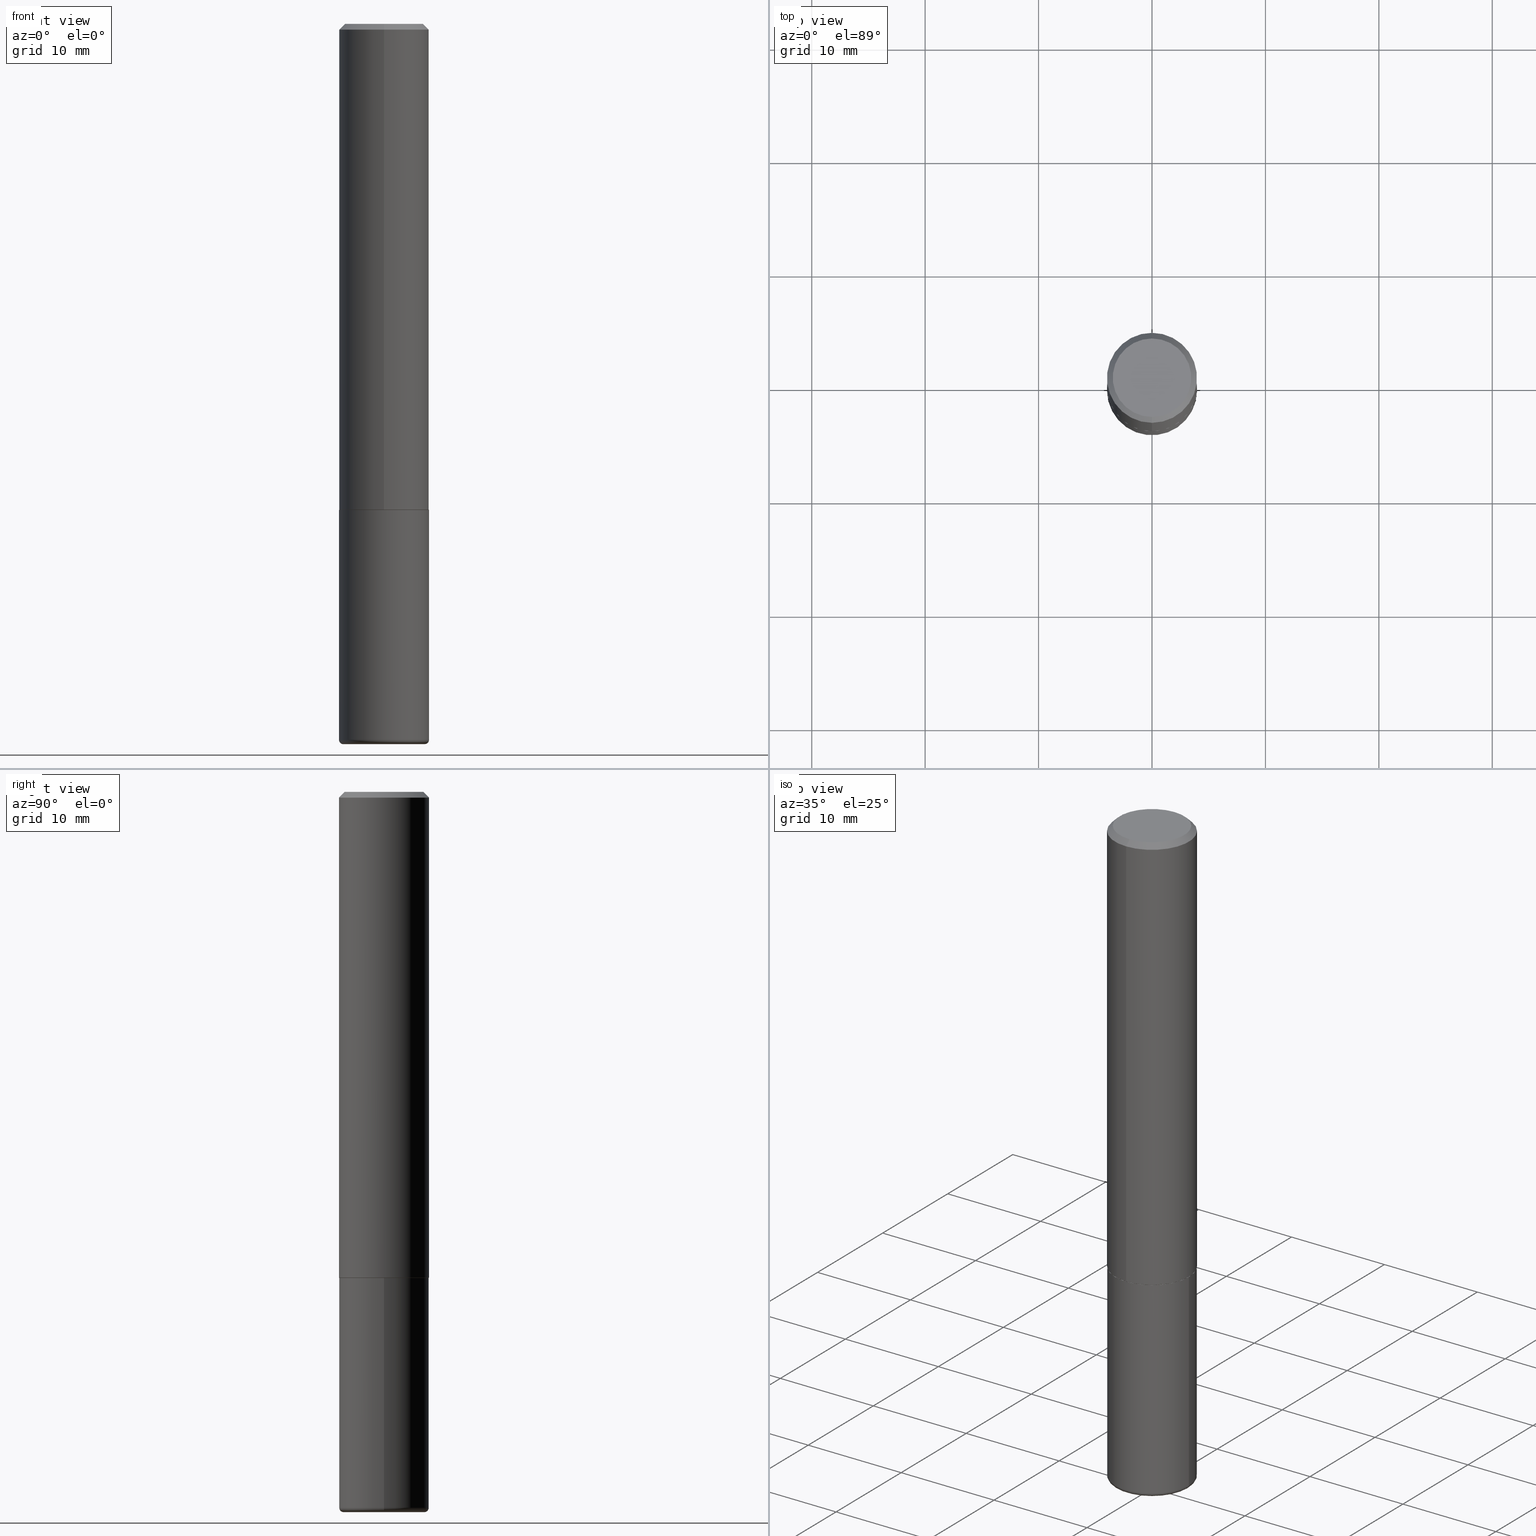
[diagram: canonical four-view strip — front | top / right | iso, engineering-drawing reading convention]
A machine part, canonical four-view strip (front | top / right | iso — engineering-drawing reading convention). The complete STEP part file that produces these views, byte-faithful:
ISO-10303-21;
HEADER;
FILE_DESCRIPTION (( 'STEP AP203' ),
    '1' );
FILE_NAME ('36724.STEP',
    '2024-03-01T17:37:02',
    ( '' ),
    ( '' ),
    'SwSTEP 2.0',
    'SolidWorks 2023',
    '' );
FILE_SCHEMA (( 'CONFIG_CONTROL_DESIGN' ));
ENDSEC;

DATA;
#1 = CIRCLE ( 'NONE', #169, 0.1552499999999999991 ) ;
#2 = CARTESIAN_POINT ( 'NONE',  ( 6.076989983370064174E-29, -8.676331127025216680E-15, -2.484999999999999876 ) ) ;
#3 = ADVANCED_FACE ( 'NONE', ( #73 ), #58, .T. ) ;
#4 = DIRECTION ( 'NONE',  ( -2.445468806185136877E-29, 3.491481338843145188E-15, 1.000000000000000000 ) ) ;
#5 = DIRECTION ( 'NONE',  ( -6.982962677686265922E-15, -1.000000000000000000, 3.519288880726909138E-15 ) ) ;
#6 = DIRECTION ( 'NONE',  ( -1.000000000000000000, 6.982962677686265922E-15, -4.876176775795935793E-29 ) ) ;
#7 = AXIS2_PLACEMENT_3D ( 'NONE', #339, #233, #298 ) ;
#9 = VERTEX_POINT ( 'NONE', #297 ) ;
#8 = DIRECTION ( 'NONE',  ( 2.445775803462607950E-29, -3.491041701268606382E-15, -1.000000000000000000 ) ) ;
#10 = ADVANCED_FACE ( 'NONE', ( #90 ), #74, .T. ) ;
#11 = CARTESIAN_POINT ( 'NONE',  ( 2.507022930474334728E-45, -3.578464380885487858E-31, -1.025042003819408096E-16 ) ) ;
#12 = DIRECTION ( 'NONE',  ( 1.000000000000000000, -6.982962677686269077E-15, 0.000000000000000000 ) ) ;
#13 = CC_DESIGN_APPROVAL ( #101, ( #26 ) ) ;
#14 = DATE_AND_TIME ( #347, #311 ) ;
#15 = ORIENTED_EDGE ( 'NONE', *, *, #342, .T. ) ;
#16 = EDGE_CURVE ( 'NONE', #353, #219, #260, .T. ) ;
#17 = APPROVAL_ROLE ( '' ) ;
#18 = CARTESIAN_POINT ( 'NONE',  ( 1.106670310946398043E-15, 0.1552499999999941427, -1.687000000000001165 ) ) ;
#19 = ORIENTED_EDGE ( 'NONE', *, *, #402, .F. ) ;
#20 = AXIS2_PLACEMENT_3D ( 'NONE', #194, #153, #325 ) ;
#21 = PERSON_AND_ORGANIZATION ( #55, #372 ) ;
#22 = AXIS2_PLACEMENT_3D ( 'NONE', #111, #238, #148 ) ;
#23 = CARTESIAN_POINT ( 'NONE',  ( -1.091087918388439730E-15, -0.1562500000000061617, -1.685999999999999721 ) ) ;
#24 = COORDINATED_UNIVERSAL_TIME_OFFSET ( 5, 0, .BEHIND. ) ;
#25 = APPLICATION_PROTOCOL_DEFINITION ( 'international standard', 'config_control_design', 1994, #343 ) ;
#26 = PRODUCT_DEFINITION_FORMATION_WITH_SPECIFIED_SOURCE ( 'ANY', '', #240, .NOT_KNOWN. ) ;
#27 = ORIENTED_EDGE ( 'NONE', *, *, #106, .F. ) ;
#28 = UNCERTAINTY_MEASURE_WITH_UNIT (LENGTH_MEASURE( 1.000000000000000082E-05 ), #255, 'distance_accuracy_value', 'NONE');
#29 = MANIFOLD_SOLID_BREP ( 'Body-Move/Copy2[2]', #327 ) ;
#30 = LINE ( 'NONE', #274, #224 ) ;
#31 = CYLINDRICAL_SURFACE ( 'NONE', #213, 0.1562500000000001388 ) ;
#32 = EDGE_CURVE ( 'NONE', #313, #323, #39, .T. ) ;
#33 = DIRECTION ( 'NONE',  ( -4.851104656540958753E-15, -0.7071067811865492381, -0.7071067811865457964 ) ) ;
#34 = ORIENTED_EDGE ( 'NONE', *, *, #263, .F. ) ;
#35 = AXIS2_PLACEMENT_3D ( 'NONE', #43, #8, #345 ) ;
#36 = DIRECTION ( 'NONE',  ( -6.982962677686265922E-15, -1.000000000000000000, 3.491041701268606382E-15 ) ) ;
#37 = ADVANCED_FACE ( 'NONE', ( #265 ), #241, .F. ) ;
#38 = DIRECTION ( 'NONE',  ( -2.445775803462607950E-29, 3.491041701268606382E-15, 1.000000000000000000 ) ) ;
#39 = LINE ( 'NONE', #239, #181 ) ;
#40 = ADVANCED_FACE ( 'NONE', ( #391 ), #346, .T. ) ;
#41 = VECTOR ( 'NONE', #60, 39.37007874015748143 ) ;
#42 = FACE_OUTER_BOUND ( 'NONE', #52, .T. ) ;
#43 = CARTESIAN_POINT ( 'NONE',  ( 4.891551606925223922E-31, -6.982083402537224056E-17, -0.02000000000000003511 ) ) ;
#44 = DIRECTION ( 'NONE',  ( 1.000000000000000000, -6.982962677686209124E-15, 0.000000000000000000 ) ) ;
#46 = ORIENTED_EDGE ( 'NONE', *, *, #237, .F. ) ;
#45 = CARTESIAN_POINT ( 'NONE',  ( 6.113672015462842613E-29, -8.728703347107866520E-15, -2.500000000000000444 ) ) ;
#47 = DIRECTION ( 'NONE',  ( -2.445775803462607950E-29, 3.491041701268606382E-15, 1.000000000000000000 ) ) ;
#48 = CARTESIAN_POINT ( 'NONE',  ( -0.1562500000000000000, -6.173007048201645860E-15, -1.687000000000000277 ) ) ;
#49 = AXIS2_PLACEMENT_3D ( 'NONE', #272, #206, #303 ) ;
#50 = CIRCLE ( 'NONE', #357, 0.1412500000000000144 ) ;
#51 = LENGTH_MEASURE_WITH_UNIT ( LENGTH_MEASURE( 0.02539999999999999897 ), #127 );
#52 = EDGE_LOOP ( 'NONE', ( #413, #94, #360, #202 ) ) ;
#53 = PERSON_AND_ORGANIZATION_ROLE ( 'classification_officer' ) ;
#54 = ORIENTED_EDGE ( 'NONE', *, *, #377, .F. ) ;
#55 = PERSON ( 'UNSPECIFIED', 'UNSPECIFIED', 'UNSPECIFIED', ('UNSPECIFIED'), ('UNSPECIFIED'), ('UNSPECIFIED') ) ;
#56 = EDGE_LOOP ( 'NONE', ( #119, #124, #54, #84 ) ) ;
#57 = VERTEX_POINT ( 'NONE', #114 ) ;
#58 = TOROIDAL_SURFACE ( 'NONE', #262, 0.1412500000000000144, 0.01500000000000039496 ) ;
#59 = PERSON_AND_ORGANIZATION ( #55, #372 ) ;
#60 = DIRECTION ( 'NONE',  ( 4.937700262164542520E-15, 0.7071067811865443531, -0.7071067811865506814 ) ) ;
#61 = ORIENTED_EDGE ( 'NONE', *, *, #315, .T. ) ;
#62 = PERSON_AND_ORGANIZATION ( #55, #372 ) ;
#63 = EDGE_LOOP ( 'NONE', ( #150, #27, #161, #278 ) ) ;
#64 = AXIS2_PLACEMENT_3D ( 'NONE', #112, #47, #180 ) ;
#65 = CARTESIAN_POINT ( 'NONE',  ( 1.021258291611617059E-15, 0.1362500000000001210, -5.781586321797888956E-16 ) ) ;
#66 = EDGE_LOOP ( 'NONE', ( #350, #88 ) ) ;
#67 = EDGE_CURVE ( 'NONE', #404, #313, #155, .T. ) ;
#68 = SHAPE_DEFINITION_REPRESENTATION ( #203, #131 ) ;
#69 = DIRECTION ( 'NONE',  ( 7.105427357601001859E-15, 1.000000000000000000, -3.491481338843145583E-15 ) ) ;
#70 = SECURITY_CLASSIFICATION ( '', '', #279 ) ;
#71 = CARTESIAN_POINT ( 'NONE',  ( 4.125505876034326327E-29, -5.890129018628388122E-15, -1.687000000000000277 ) ) ;
#73 = FACE_OUTER_BOUND ( 'NONE', #366, .T. ) ;
#72 = CARTESIAN_POINT ( 'NONE',  ( 4.891551606925223922E-31, -6.982083402537224056E-17, -0.02000000000000003511 ) ) ;
#74 = CYLINDRICAL_SURFACE ( 'NONE', #234, 0.1562500000000000000 ) ;
#75 = CARTESIAN_POINT ( 'NONE',  ( 0.000000000000000000, 0.000000000000000000, 0.000000000000000000 ) ) ;
#76 = DIRECTION ( 'NONE',  ( -2.445468806185136597E-29, 3.491481338843145583E-15, 1.000000000000000000 ) ) ;
#77 = FACE_OUTER_BOUND ( 'NONE', #126, .T. ) ;
#78 = LINE ( 'NONE', #341, #232 ) ;
#79 = DIRECTION ( 'NONE',  ( -6.982962677686265133E-15, -1.000000000000000000, 3.496765431890256920E-15 ) ) ;
#80 = DIRECTION ( 'NONE',  ( -6.982962677686265922E-15, -1.000000000000000000, 3.496765431890250609E-15 ) ) ;
#81 = CARTESIAN_POINT ( 'NONE',  ( 4.125505876034326327E-29, -5.890129018628388122E-15, -1.687000000000000277 ) ) ;
#82 = DIRECTION ( 'NONE',  ( -2.445468806185136597E-29, 3.491481338843145583E-15, 1.000000000000000000 ) ) ;
#84 = ORIENTED_EDGE ( 'NONE', *, *, #283, .F. ) ;
#83 = CARTESIAN_POINT ( 'NONE',  ( 0.1562500000000002220, -9.767419045413696643E-15, -2.484999999999999876 ) ) ;
#85 = ORIENTED_EDGE ( 'NONE', *, *, #402, .T. ) ;
#86 = APPROVAL_PERSON_ORGANIZATION ( #87, #338, #17 ) ;
#87 = PERSON_AND_ORGANIZATION ( #55, #372 ) ;
#88 = ORIENTED_EDGE ( 'NONE', *, *, #92, .T. ) ;
#89 = DIRECTION ( 'NONE',  ( -2.445775803462607950E-29, 3.491041701268606382E-15, 1.000000000000000000 ) ) ;
#90 = FACE_OUTER_BOUND ( 'NONE', #301, .T. ) ;
#91 = ADVANCED_FACE ( 'NONE', ( #77 ), #144, .T. ) ;
#92 = EDGE_CURVE ( 'NONE', #57, #275, #108, .T. ) ;
#93 = LINE ( 'NONE', #352, #41 ) ;
#94 = ORIENTED_EDGE ( 'NONE', *, *, #302, .T. ) ;
#95 = DATE_AND_TIME ( #226, #362 ) ;
#96 = CARTESIAN_POINT ( 'NONE',  ( 1.110223024625157329E-15, 0.1562500000000001388, -5.454752658232202403E-16 ) ) ;
#97 = EDGE_LOOP ( 'NONE', ( #128, #401, #184, #285 ) ) ;
#98 = PERSON_AND_ORGANIZATION ( #55, #372 ) ;
#99 = ORIENTED_EDGE ( 'NONE', *, *, #16, .T. ) ;
#100 = FACE_OUTER_BOUND ( 'NONE', #66, .T. ) ;
#101 = APPROVAL ( #349, 'UNSPECIFIED' ) ;
#102 = ORIENTED_EDGE ( 'NONE', *, *, #183, .F. ) ;
#103 = CIRCLE ( 'NONE', #370, 0.1562500000000000000 ) ;
#104 = PLANE ( 'NONE',  #204 ) ;
#105 = DIRECTION ( 'NONE',  ( -1.000000000000000000, 6.982962677686265922E-15, -4.876176775795935793E-29 ) ) ;
#106 = EDGE_CURVE ( 'NONE', #275, #57, #199, .T. ) ;
#107 = DIRECTION ( 'NONE',  ( 1.000000000000000000, -6.982962677686266711E-15, 4.876176775795936353E-29 ) ) ;
#108 = CIRCLE ( 'NONE', #296, 0.1362500000000001210 ) ;
#109 = EDGE_LOOP ( 'NONE', ( #319, #188 ) ) ;
#110 = CARTESIAN_POINT ( 'NONE',  ( 0.000000000000000000, 0.000000000000000000, 0.000000000000000000 ) ) ;
#111 = CARTESIAN_POINT ( 'NONE',  ( 4.126023780441421476E-29, -5.889387350040140911E-15, -1.687000000000000499 ) ) ;
#112 = CARTESIAN_POINT ( 'NONE',  ( 4.891551606925223922E-31, -6.982083402537224056E-17, -0.02000000000000003511 ) ) ;
#113 = EDGE_CURVE ( 'NONE', #158, #220, #355, .T. ) ;
#114 = CARTESIAN_POINT ( 'NONE',  ( -1.003347832174086672E-15, -0.1362500000000001210, 3.731502314159072271E-16 ) ) ;
#115 = AXIS2_PLACEMENT_3D ( 'NONE', #221, #129, #286 ) ;
#116 = FACE_OUTER_BOUND ( 'NONE', #375, .T. ) ;
#117 = APPROVAL ( #187, 'UNSPECIFIED' ) ;
#118 = VERTEX_POINT ( 'NONE', #333 ) ;
#119 = ORIENTED_EDGE ( 'NONE', *, *, #263, .T. ) ;
#120 = AXIS2_PLACEMENT_3D ( 'NONE', #175, #290, #408 ) ;
#121 =( GEOMETRIC_REPRESENTATION_CONTEXT ( 3 ) GLOBAL_UNCERTAINTY_ASSIGNED_CONTEXT ( ( #28 ) ) GLOBAL_UNIT_ASSIGNED_CONTEXT ( ( #255, #123, #249 ) ) REPRESENTATION_CONTEXT ( 'NONE', 'WORKASPACE' ) );
#122 = ADVANCED_FACE ( 'NONE', ( #209 ), #171, .T. ) ;
#123 =( NAMED_UNIT ( * ) PLANE_ANGLE_UNIT ( ) SI_UNIT ( $, .RADIAN. ) );
#124 = ORIENTED_EDGE ( 'NONE', *, *, #259, .T. ) ;
#125 = APPROVAL_ROLE ( '' ) ;
#126 = EDGE_LOOP ( 'NONE', ( #247, #99, #348, #326 ) ) ;
#127 =( LENGTH_UNIT ( ) NAMED_UNIT ( * ) SI_UNIT ( $, .METRE. ) );
#128 = ORIENTED_EDGE ( 'NONE', *, *, #377, .T. ) ;
#129 = DIRECTION ( 'NONE',  ( 0.000000000000000000, 0.000000000000000000, 1.000000000000000000 ) ) ;
#130 = DIRECTION ( 'NONE',  ( -6.982962677686265922E-15, -1.000000000000000000, 3.519288880726909138E-15 ) ) ;
#131 = ADVANCED_BREP_SHAPE_REPRESENTATION ( '36724', ( #316, #29, #115 ), #121 ) ;
#132 = EDGE_CURVE ( 'NONE', #353, #313, #387, .T. ) ;
#133 = DIRECTION ( 'NONE',  ( -2.445468806185136597E-29, 3.491481338843145583E-15, 1.000000000000000000 ) ) ;
#134 = ADVANCED_FACE ( 'NONE', ( #42 ), #379, .T. ) ;
#135 = AXIS2_PLACEMENT_3D ( 'NONE', #72, #215, #214 ) ;
#136 = CIRCLE ( 'NONE', #147, 0.1552499999999999991 ) ;
#137 = ORIENTED_EDGE ( 'NONE', *, *, #193, .F. ) ;
#138 = FACE_OUTER_BOUND ( 'NONE', #109, .T. ) ;
#139 = DIRECTION ( 'NONE',  ( 1.000000000000000000, -6.982962677686269077E-15, 0.000000000000000000 ) ) ;
#140 = DIRECTION ( 'NONE',  ( -2.445775803462607950E-29, 3.491041701268606382E-15, 1.000000000000000000 ) ) ;
#141 = CARTESIAN_POINT ( 'NONE',  ( 6.076989983370064174E-29, -8.676331127025216680E-15, -2.484999999999999876 ) ) ;
#142 = CARTESIAN_POINT ( 'NONE',  ( 4.126023780441421476E-29, -5.889387350040140911E-15, -1.687000000000000499 ) ) ;
#143 = CARTESIAN_POINT ( 'NONE',  ( 0.1412500000000000144, -9.662674605248401695E-15, -2.484999999999999876 ) ) ;
#144 = CYLINDRICAL_SURFACE ( 'NONE', #309, 0.1562500000000000000 ) ;
#145 = DIRECTION ( 'NONE',  ( -2.445775803462607950E-29, 3.491041701268606382E-15, 1.000000000000000000 ) ) ;
#146 = AXIS2_PLACEMENT_3D ( 'NONE', #197, #418, #130 ) ;
#147 = AXIS2_PLACEMENT_3D ( 'NONE', #142, #38, #5 ) ;
#148 = DIRECTION ( 'NONE',  ( -6.982962677686265922E-15, -1.000000000000000000, 3.519288880726909138E-15 ) ) ;
#149 = ORIENTED_EDGE ( 'NONE', *, *, #271, .T. ) ;
#150 = ORIENTED_EDGE ( 'NONE', *, *, #190, .F. ) ;
#151 = EDGE_CURVE ( 'NONE', #323, #219, #304, .T. ) ;
#152 = PERSON_AND_ORGANIZATION ( #55, #372 ) ;
#153 = DIRECTION ( 'NONE',  ( 2.445775803462607950E-29, -3.491041701268606382E-15, -1.000000000000000000 ) ) ;
#154 = VERTEX_POINT ( 'NONE', #18 ) ;
#155 = CIRCLE ( 'NONE', #268, 0.01500000000000040364 ) ;
#156 = APPROVAL_PERSON_ORGANIZATION ( #98, #117, #354 ) ;
#157 = COORDINATED_UNIVERSAL_TIME_OFFSET ( 5, 0, .BEHIND. ) ;
#158 = VERTEX_POINT ( 'NONE', #250 ) ;
#159 = ADVANCED_FACE ( 'NONE', ( #165 ), #174, .T. ) ;
#160 = PLANE ( 'NONE',  #20 ) ;
#161 = ORIENTED_EDGE ( 'NONE', *, *, #186, .T. ) ;
#162 = PERSON_AND_ORGANIZATION_ROLE ( 'design_owner' ) ;
#163 = AXIS2_PLACEMENT_3D ( 'NONE', #179, #388, #79 ) ;
#164 = LOCAL_TIME ( 12, 37, 2.000000000000000000, #157 ) ;
#165 = FACE_OUTER_BOUND ( 'NONE', #56, .T. ) ;
#166 = FACE_OUTER_BOUND ( 'NONE', #97, .T. ) ;
#167 = ADVANCED_FACE ( 'NONE', ( #100 ), #160, .F. ) ;
#168 = CARTESIAN_POINT ( 'NONE',  ( -0.1412500000000000144, -7.672689512764074473E-15, -2.484999999999999876 ) ) ;
#169 = AXIS2_PLACEMENT_3D ( 'NONE', #207, #89, #378 ) ;
#170 = CONICAL_SURFACE ( 'NONE', #22, 0.1552499999999999991, 0.7853981633974141952 ) ;
#171 = CYLINDRICAL_SURFACE ( 'NONE', #7, 0.1562500000000001388 ) ;
#172 = CARTESIAN_POINT ( 'NONE',  ( -0.1562500000000000000, 1.110223024625156540E-15, -7.685836078523291160E-30 ) ) ;
#173 = CC_DESIGN_DATE_AND_TIME_ASSIGNMENT ( #410, #416, ( #264 ) ) ;
#174 = CONICAL_SURFACE ( 'NONE', #146, 0.1552499999999999991, 0.7853981633974141952 ) ;
#175 = CARTESIAN_POINT ( 'NONE',  ( 4.125505876034326327E-29, -5.890129018628388122E-15, -1.687000000000000277 ) ) ;
#176 = DIMENSIONAL_EXPONENTS ( 1.000000000000000000, 0.000000000000000000, 0.000000000000000000, 0.000000000000000000, 0.000000000000000000, 0.000000000000000000, 0.000000000000000000 ) ;
#177 = DIRECTION ( 'NONE',  ( -2.445775803462607670E-29, 3.491041701268606382E-15, 1.000000000000000000 ) ) ;
#178 = PLANE ( 'NONE',  #340 ) ;
#179 = CARTESIAN_POINT ( 'NONE',  ( 4.891551606925223922E-31, -6.982083402537224056E-17, -0.02000000000000003511 ) ) ;
#180 = DIRECTION ( 'NONE',  ( -6.982962677686265133E-15, -1.000000000000000000, 3.496765431890256920E-15 ) ) ;
#181 = VECTOR ( 'NONE', #270, 39.37007874015748143 ) ;
#182 = CIRCLE ( 'NONE', #248, 0.1562500000000002776 ) ;
#183 = EDGE_CURVE ( 'NONE', #223, #158, #380, .T. ) ;
#184 = ORIENTED_EDGE ( 'NONE', *, *, #393, .F. ) ;
#185 = ORIENTED_EDGE ( 'NONE', *, *, #16, .F. ) ;
#186 = EDGE_CURVE ( 'NONE', #275, #158, #93, .T. ) ;
#187 = APPROVAL_STATUS ( 'not_yet_approved' ) ;
#188 = ORIENTED_EDGE ( 'NONE', *, *, #193, .T. ) ;
#189 = AXIS2_PLACEMENT_3D ( 'NONE', #141, #235, #216 ) ;
#190 = EDGE_CURVE ( 'NONE', #57, #220, #227, .T. ) ;
#191 = DATE_AND_TIME ( #374, #205 ) ;
#192 = ORIENTED_EDGE ( 'NONE', *, *, #113, .F. ) ;
#193 = EDGE_CURVE ( 'NONE', #219, #323, #103, .T. ) ;
#194 = CARTESIAN_POINT ( 'NONE',  ( 9.514286648347545493E-16, 0.1362500000000001210, -5.269065319888184785E-16 ) ) ;
#195 = ORIENTED_EDGE ( 'NONE', *, *, #342, .F. ) ;
#196 = FACE_OUTER_BOUND ( 'NONE', #228, .T. ) ;
#197 = CARTESIAN_POINT ( 'NONE',  ( 4.126023780441421476E-29, -5.889387350040140911E-15, -1.687000000000000499 ) ) ;
#198 = ORIENTED_EDGE ( 'NONE', *, *, #259, .F. ) ;
#199 = CIRCLE ( 'NONE', #331, 0.1362500000000001210 ) ;
#200 = LOCAL_TIME ( 12, 37, 2.000000000000000000, #407 ) ;
#201 = LINE ( 'NONE', #383, #395 ) ;
#202 = ORIENTED_EDGE ( 'NONE', *, *, #132, .F. ) ;
#203 = PRODUCT_DEFINITION_SHAPE ( 'NONE', 'NONE',  #264 ) ;
#204 = AXIS2_PLACEMENT_3D ( 'NONE', #295, #328, #105 ) ;
#205 = LOCAL_TIME ( 12, 37, 2.000000000000000000, #317 ) ;
#206 = DIRECTION ( 'NONE',  ( -2.445775803462607950E-29, 3.491041701268606382E-15, 1.000000000000000000 ) ) ;
#207 = CARTESIAN_POINT ( 'NONE',  ( 4.126023780441421476E-29, -5.889387350040140911E-15, -1.687000000000000499 ) ) ;
#208 = DIRECTION ( 'NONE',  ( -4.937700262164378437E-15, -0.7071067811865208164, 0.7071067811865739960 ) ) ;
#209 = FACE_OUTER_BOUND ( 'NONE', #376, .T. ) ;
#210 = CARTESIAN_POINT ( 'NONE',  ( 6.076989983370064174E-29, -8.676331127025216680E-15, -2.484999999999999876 ) ) ;
#211 = DIRECTION ( 'NONE',  ( -2.445775803462607950E-29, 3.491041701268606382E-15, 1.000000000000000000 ) ) ;
#212 = DIRECTION ( 'NONE',  ( -2.445468806185136597E-29, 3.491481338843145583E-15, 1.000000000000000000 ) ) ;
#213 = AXIS2_PLACEMENT_3D ( 'NONE', #364, #336, #273 ) ;
#214 = DIRECTION ( 'NONE',  ( 6.982962677686265133E-15, 1.000000000000000000, -3.496765431890256920E-15 ) ) ;
#215 = DIRECTION ( 'NONE',  ( 2.445775803462607950E-29, -3.491041701268606382E-15, -1.000000000000000000 ) ) ;
#216 = DIRECTION ( 'NONE',  ( 1.000000000000000000, -6.982962677686269077E-15, 0.000000000000000000 ) ) ;
#217 = COORDINATED_UNIVERSAL_TIME_OFFSET ( 5, 0, .BEHIND. ) ;
#218 = CARTESIAN_POINT ( 'NONE',  ( -1.071952812151801215E-15, -0.1562500000000000833, -0.01999999999999948694 ) ) ;
#219 = VERTEX_POINT ( 'NONE', #48 ) ;
#220 = VERTEX_POINT ( 'NONE', #218 ) ;
#221 = CARTESIAN_POINT ( 'NONE',  ( 0.000000000000000000, 0.000000000000000000, 0.000000000000000000 ) ) ;
#222 = DIRECTION ( 'NONE',  ( -2.445775803462607670E-29, 3.491041701268606382E-15, 1.000000000000000000 ) ) ;
#223 = VERTEX_POINT ( 'NONE', #277 ) ;
#224 = VECTOR ( 'NONE', #266, 39.37007874015748854 ) ;
#225 = AXIS2_PLACEMENT_3D ( 'NONE', #168, #69, #329 ) ;
#226 = CALENDAR_DATE ( 2024, 1, 3 ) ;
#227 = LINE ( 'NONE', #359, #280 ) ;
#228 = EDGE_LOOP ( 'NONE', ( #256, #409 ) ) ;
#229 = DIRECTION ( 'NONE',  ( -2.445468806185136597E-29, 3.491481338843145583E-15, 1.000000000000000000 ) ) ;
#230 = ADVANCED_FACE ( 'NONE', ( #138 ), #178, .F. ) ;
#231 = VECTOR ( 'NONE', #222, 39.37007874015748143 ) ;
#232 = VECTOR ( 'NONE', #177, 39.37007874015748143 ) ;
#233 = DIRECTION ( 'NONE',  ( -2.445775803462607950E-29, 3.491041701268606382E-15, 1.000000000000000000 ) ) ;
#234 = AXIS2_PLACEMENT_3D ( 'NONE', #75, #397, #288 ) ;
#235 = DIRECTION ( 'NONE',  ( -2.445468806185136597E-29, 3.491481338843145583E-15, 1.000000000000000000 ) ) ;
#236 = CARTESIAN_POINT ( 'NONE',  ( 2.507022930474334728E-45, -3.578464380885487858E-31, -1.025042003819408096E-16 ) ) ;
#237 = EDGE_CURVE ( 'NONE', #313, #353, #384, .T. ) ;
#238 = DIRECTION ( 'NONE',  ( -2.445775803462607950E-29, 3.491041701268606382E-15, 1.000000000000000000 ) ) ;
#239 = CARTESIAN_POINT ( 'NONE',  ( 0.1562500000000000000, -1.091087918388479174E-15, 7.619026212181150377E-30 ) ) ;
#240 = PRODUCT ( '36724', '36724', '', ( #351 ) ) ;
#241 = PLANE ( 'NONE',  #49 ) ;
#242 = CARTESIAN_POINT ( 'NONE',  ( 4.123578004637957798E-29, -5.885896308338871459E-15, -1.686000000000000165 ) ) ;
#244 = VERTEX_POINT ( 'NONE', #23 ) ;
#243 = DIRECTION ( 'NONE',  ( 1.000000000000000000, -6.982962677686269077E-15, 0.000000000000000000 ) ) ;
#245 = PERSON_AND_ORGANIZATION_ROLE ( 'design_supplier' ) ;
#246 = AXIS2_PLACEMENT_3D ( 'NONE', #412, #229, #253 ) ;
#247 = ORIENTED_EDGE ( 'NONE', *, *, #237, .T. ) ;
#248 = AXIS2_PLACEMENT_3D ( 'NONE', #394, #145, #399 ) ;
#249 =( NAMED_UNIT ( * ) SI_UNIT ( $, .STERADIAN. ) SOLID_ANGLE_UNIT ( ) );
#250 = CARTESIAN_POINT ( 'NONE',  ( 1.091087918388479568E-15, 0.1562499999999999445, -0.02000000000000057981 ) ) ;
#251 = ORIENTED_EDGE ( 'NONE', *, *, #190, .T. ) ;
#252 = ADVANCED_FACE ( 'NONE', ( #196 ), #104, .T. ) ;
#253 = DIRECTION ( 'NONE',  ( 1.000000000000000000, -6.982962677686262766E-15, 4.883557194083111219E-29 ) ) ;
#254 = ORIENTED_EDGE ( 'NONE', *, *, #92, .F. ) ;
#255 =( CONVERSION_BASED_UNIT ( 'INCH', #51 ) LENGTH_UNIT ( ) NAMED_UNIT ( #176 ) );
#256 = ORIENTED_EDGE ( 'NONE', *, *, #315, .F. ) ;
#257 = AXIS2_PLACEMENT_3D ( 'NONE', #242, #400, #80 ) ;
#258 = PERSON_AND_ORGANIZATION_ROLE ( 'creator' ) ;
#259 = EDGE_CURVE ( 'NONE', #154, #223, #30, .T. ) ;
#260 = LINE ( 'NONE', #172, #318 ) ;
#261 = PRODUCT_RELATED_PRODUCT_CATEGORY ( 'detail', '', ( #240 ) ) ;
#262 = AXIS2_PLACEMENT_3D ( 'NONE', #210, #133, #267 ) ;
#263 = EDGE_CURVE ( 'NONE', #9, #154, #1, .T. ) ;
#264 = PRODUCT_DEFINITION ( 'UNKNOWN', '', #26, #367 ) ;
#265 = FACE_OUTER_BOUND ( 'NONE', #356, .T. ) ;
#266 = DIRECTION ( 'NONE',  ( 5.024295867787889629E-15, 0.7071067811865257013, 0.7071067811865691111 ) ) ;
#267 = DIRECTION ( 'NONE',  ( 1.000000000000000000, -6.982962677686262766E-15, 4.883557194083111219E-29 ) ) ;
#268 = AXIS2_PLACEMENT_3D ( 'NONE', #143, #308, #44 ) ;
#269 = APPROVAL_PERSON_ORGANIZATION ( #152, #101, #125 ) ;
#270 = DIRECTION ( 'NONE',  ( -2.445468806185136877E-29, 3.491481338843145188E-15, 1.000000000000000000 ) ) ;
#271 = EDGE_CURVE ( 'NONE', #118, #353, #396, .T. ) ;
#272 = CARTESIAN_POINT ( 'NONE',  ( 4.126023780441420915E-29, -5.889387350040140911E-15, -1.687000000000000277 ) ) ;
#273 = DIRECTION ( 'NONE',  ( -6.982962677686265922E-15, -1.000000000000000000, 3.491041701268606382E-15 ) ) ;
#274 = CARTESIAN_POINT ( 'NONE',  ( 1.103117597267596553E-15, 0.1552499999999941427, -1.687000000000001165 ) ) ;
#275 = VERTEX_POINT ( 'NONE', #65 ) ;
#276 = CC_DESIGN_PERSON_AND_ORGANIZATION_ASSIGNMENT ( #59, #162, ( #240 ) ) ;
#277 = CARTESIAN_POINT ( 'NONE',  ( 1.110223024625178629E-15, 0.1562499999999943934, -1.686000000000000831 ) ) ;
#278 = ORIENTED_EDGE ( 'NONE', *, *, #113, .T. ) ;
#279 = SECURITY_CLASSIFICATION_LEVEL ( 'unclassified' ) ;
#280 = VECTOR ( 'NONE', #33, 39.37007874015748143 ) ;
#281 = EDGE_LOOP ( 'NONE', ( #198, #85, #371, #195 ) ) ;
#282 = CONICAL_SURFACE ( 'NONE', #35, 0.1562500000000000000, 0.7853981633974472798 ) ;
#283 = EDGE_CURVE ( 'NONE', #9, #244, #201, .T. ) ;
#284 = CALENDAR_DATE ( 2024, 1, 3 ) ;
#285 = ORIENTED_EDGE ( 'NONE', *, *, #414, .F. ) ;
#286 = DIRECTION ( 'NONE',  ( 1.000000000000000000, 0.000000000000000000, 0.000000000000000000 ) ) ;
#287 = ORIENTED_EDGE ( 'NONE', *, *, #67, .F. ) ;
#288 = DIRECTION ( 'NONE',  ( 1.000000000000000000, -6.982962677686266711E-15, 4.876176775795936353E-29 ) ) ;
#289 = APPROVAL_DATE_TIME ( #191, #117 ) ;
#290 = DIRECTION ( 'NONE',  ( -2.445468806185136597E-29, 3.491481338843145583E-15, 1.000000000000000000 ) ) ;
#291 = ADVANCED_FACE ( 'NONE', ( #166 ), #31, .T. ) ;
#292 = CLOSED_SHELL ( 'NONE', ( #91, #3, #230, #10, #134, #252 ) ) ;
#293 = CIRCLE ( 'NONE', #257, 0.1562500000000002776 ) ;
#294 = CC_DESIGN_PERSON_AND_ORGANIZATION_ASSIGNMENT ( #382, #53, ( #70 ) ) ;
#295 = CARTESIAN_POINT ( 'NONE',  ( -6.390333228981024769E-30, -1.839896173176012694E-14, -2.500000000000000000 ) ) ;
#296 = AXIS2_PLACEMENT_3D ( 'NONE', #11, #140, #369 ) ;
#297 = CARTESIAN_POINT ( 'NONE',  ( -1.084104955710751547E-15, -0.1552500000000058833, -1.687000000000000055 ) ) ;
#298 = DIRECTION ( 'NONE',  ( -6.982962677686265922E-15, -1.000000000000000000, 3.491041701268606382E-15 ) ) ;
#299 = CALENDAR_DATE ( 2024, 1, 3 ) ;
#300 = DIRECTION ( 'NONE',  ( -2.445468806185136597E-29, 3.491481338843145583E-15, 1.000000000000000000 ) ) ;
#301 = EDGE_LOOP ( 'NONE', ( #185, #415, #381, #137 ) ) ;
#302 = EDGE_CURVE ( 'NONE', #118, #404, #332, .T. ) ;
#303 = DIRECTION ( 'NONE',  ( -6.982962677686265922E-15, -1.000000000000000000, 3.491041701268606382E-15 ) ) ;
#304 = CIRCLE ( 'NONE', #120, 0.1562500000000000000 ) ;
#305 = AXIS2_PLACEMENT_3D ( 'NONE', #45, #212, #12 ) ;
#306 = CARTESIAN_POINT ( 'NONE',  ( 0.1562500000000000000, -6.981216937016868084E-15, -1.687000000000000277 ) ) ;
#307 = CC_DESIGN_PERSON_AND_ORGANIZATION_ASSIGNMENT ( #62, #245, ( #26 ) ) ;
#308 = DIRECTION ( 'NONE',  ( -6.982962677686266711E-15, -1.000000000000000000, 3.491481338843145583E-15 ) ) ;
#309 = AXIS2_PLACEMENT_3D ( 'NONE', #110, #300, #107 ) ;
#310 = CARTESIAN_POINT ( 'NONE',  ( 0.1412500000000000144, -9.715046825331051535E-15, -2.500000000000000444 ) ) ;
#311 = LOCAL_TIME ( 12, 37, 2.000000000000000000, #217 ) ;
#312 = PERSON_AND_ORGANIZATION ( #55, #372 ) ;
#313 = VERTEX_POINT ( 'NONE', #83 ) ;
#314 = APPROVAL_STATUS ( 'not_yet_approved' ) ;
#315 = EDGE_CURVE ( 'NONE', #404, #118, #50, .T. ) ;
#316 = MANIFOLD_SOLID_BREP ( 'Body-Move/Copy2[1]', #292 ) ;
#317 = COORDINATED_UNIVERSAL_TIME_OFFSET ( 5, 0, .BEHIND. ) ;
#318 = VECTOR ( 'NONE', #4, 39.37007874015748143 ) ;
#319 = ORIENTED_EDGE ( 'NONE', *, *, #151, .T. ) ;
#320 = CC_DESIGN_APPROVAL ( #117, ( #264 ) ) ;
#321 = PERSON_AND_ORGANIZATION_ROLE ( 'creator' ) ;
#322 = APPLICATION_PROTOCOL_DEFINITION ( 'international standard', 'config_control_design', 1994, #365 ) ;
#323 = VERTEX_POINT ( 'NONE', #306 ) ;
#324 = CC_DESIGN_PERSON_AND_ORGANIZATION_ASSIGNMENT ( #21, #321, ( #264 ) ) ;
#325 = DIRECTION ( 'NONE',  ( 6.982962677686265922E-15, 1.000000000000000000, -3.491041701268606382E-15 ) ) ;
#326 = ORIENTED_EDGE ( 'NONE', *, *, #32, .F. ) ;
#327 = CLOSED_SHELL ( 'NONE', ( #159, #291, #344, #40, #122, #411, #37, #167 ) ) ;
#328 = DIRECTION ( 'NONE',  ( 2.438088387897960049E-29, -3.491481338843145188E-15, -1.000000000000000000 ) ) ;
#329 = DIRECTION ( 'NONE',  ( -1.000000000000000000, 7.105427357600993970E-15, 0.000000000000000000 ) ) ;
#330 = ORIENTED_EDGE ( 'NONE', *, *, #393, .T. ) ;
#331 = AXIS2_PLACEMENT_3D ( 'NONE', #236, #211, #36 ) ;
#332 = CIRCLE ( 'NONE', #305, 0.1412500000000000144 ) ;
#333 = CARTESIAN_POINT ( 'NONE',  ( -0.1412500000000000144, -7.645584917623393016E-15, -2.500000000000000444 ) ) ;
#334 = CARTESIAN_POINT ( 'NONE',  ( -0.1562500000000002220, -7.566108102400058562E-15, -2.484999999999999876 ) ) ;
#335 = DIRECTION ( 'NONE',  ( 2.438088387897960049E-29, -3.491481338843145188E-15, -1.000000000000000000 ) ) ;
#336 = DIRECTION ( 'NONE',  ( -2.445775803462607950E-29, 3.491041701268606382E-15, 1.000000000000000000 ) ) ;
#337 = DIRECTION ( 'NONE',  ( 1.000000000000000000, -6.982962677686269077E-15, 0.000000000000000000 ) ) ;
#338 = APPROVAL ( #314, 'UNSPECIFIED' ) ;
#339 = CARTESIAN_POINT ( 'NONE',  ( 0.000000000000000000, 0.000000000000000000, 0.000000000000000000 ) ) ;
#340 = AXIS2_PLACEMENT_3D ( 'NONE', #71, #335, #6 ) ;
#341 = CARTESIAN_POINT ( 'NONE',  ( -1.091087918388479962E-15, -0.1562500000000001388, 5.454752658232202403E-16 ) ) ;
#342 = EDGE_CURVE ( 'NONE', #223, #244, #293, .T. ) ;
#343 = APPLICATION_CONTEXT ( 'configuration controlled 3d designs of mechanical parts and assemblies' ) ;
#344 = ADVANCED_FACE ( 'NONE', ( #116 ), #282, .T. ) ;
#345 = DIRECTION ( 'NONE',  ( 6.982962677686265133E-15, 1.000000000000000000, -3.496765431890256920E-15 ) ) ;
#346 = CONICAL_SURFACE ( 'NONE', #135, 0.1562500000000000000, 0.7853981633974472798 ) ;
#347 = CALENDAR_DATE ( 2024, 1, 3 ) ;
#348 = ORIENTED_EDGE ( 'NONE', *, *, #151, .F. ) ;
#349 = APPROVAL_STATUS ( 'not_yet_approved' ) ;
#350 = ORIENTED_EDGE ( 'NONE', *, *, #106, .T. ) ;
#351 = MECHANICAL_CONTEXT ( 'NONE', #343, 'mechanical' ) ;
#352 = CARTESIAN_POINT ( 'NONE',  ( 1.091087918388479568E-15, 0.1562499999999999445, -0.02000000000000057981 ) ) ;
#353 = VERTEX_POINT ( 'NONE', #334 ) ;
#354 = APPROVAL_ROLE ( '' ) ;
#355 = CIRCLE ( 'NONE', #163, 0.1562500000000000000 ) ;
#356 = EDGE_LOOP ( 'NONE', ( #34, #19 ) ) ;
#357 = AXIS2_PLACEMENT_3D ( 'NONE', #390, #76, #243 ) ;
#358 = APPROVAL_DATE_TIME ( #95, #101 ) ;
#359 = CARTESIAN_POINT ( 'NONE',  ( -1.071952812151801215E-15, -0.1562500000000000833, -0.01999999999999948694 ) ) ;
#360 = ORIENTED_EDGE ( 'NONE', *, *, #67, .T. ) ;
#361 = DATE_AND_TIME ( #299, #200 ) ;
#362 = LOCAL_TIME ( 12, 37, 2.000000000000000000, #24 ) ;
#363 = APPROVAL_DATE_TIME ( #361, #338 ) ;
#364 = CARTESIAN_POINT ( 'NONE',  ( 0.000000000000000000, 0.000000000000000000, 0.000000000000000000 ) ) ;
#365 = APPLICATION_CONTEXT ( 'configuration controlled 3d designs of mechanical parts and assemblies' ) ;
#366 = EDGE_LOOP ( 'NONE', ( #61, #149, #46, #287 ) ) ;
#367 = DESIGN_CONTEXT ( 'detailed design', #365, 'design' ) ;
#368 = CC_DESIGN_PERSON_AND_ORGANIZATION_ASSIGNMENT ( #312, #258, ( #26 ) ) ;
#369 = DIRECTION ( 'NONE',  ( -6.982962677686265922E-15, -1.000000000000000000, 3.491041701268606382E-15 ) ) ;
#370 = AXIS2_PLACEMENT_3D ( 'NONE', #81, #82, #337 ) ;
#371 = ORIENTED_EDGE ( 'NONE', *, *, #283, .T. ) ;
#372 = ORGANIZATION ( 'UNSPECIFIED', 'UNSPECIFIED', '' ) ;
#373 = ORIENTED_EDGE ( 'NONE', *, *, #186, .F. ) ;
#374 = CALENDAR_DATE ( 2024, 1, 3 ) ;
#375 = EDGE_LOOP ( 'NONE', ( #254, #251, #330, #373 ) ) ;
#376 = EDGE_LOOP ( 'NONE', ( #102, #15, #385, #192 ) ) ;
#377 = EDGE_CURVE ( 'NONE', #244, #223, #182, .T. ) ;
#378 = DIRECTION ( 'NONE',  ( -6.982962677686265922E-15, -1.000000000000000000, 3.519288880726909138E-15 ) ) ;
#379 = TOROIDAL_SURFACE ( 'NONE', #246, 0.1412500000000000144, 0.01500000000000039496 ) ;
#380 = LINE ( 'NONE', #96, #231 ) ;
#381 = ORIENTED_EDGE ( 'NONE', *, *, #32, .T. ) ;
#382 = PERSON_AND_ORGANIZATION ( #55, #372 ) ;
#383 = CARTESIAN_POINT ( 'NONE',  ( -1.084104955710751547E-15, -0.1552500000000058833, -1.687000000000000055 ) ) ;
#384 = CIRCLE ( 'NONE', #189, 0.1562500000000000000 ) ;
#385 = ORIENTED_EDGE ( 'NONE', *, *, #414, .T. ) ;
#386 = DIRECTION ( 'NONE',  ( -2.445468806185136597E-29, 3.491481338843145583E-15, 1.000000000000000000 ) ) ;
#387 = CIRCLE ( 'NONE', #406, 0.1562500000000000000 ) ;
#388 = DIRECTION ( 'NONE',  ( -2.445775803462607950E-29, 3.491041701268606382E-15, 1.000000000000000000 ) ) ;
#389 = CC_DESIGN_SECURITY_CLASSIFICATION ( #70, ( #26 ) ) ;
#390 = CARTESIAN_POINT ( 'NONE',  ( 6.113672015462842613E-29, -8.728703347107866520E-15, -2.500000000000000444 ) ) ;
#391 = FACE_OUTER_BOUND ( 'NONE', #63, .T. ) ;
#392 = FACE_OUTER_BOUND ( 'NONE', #281, .T. ) ;
#393 = EDGE_CURVE ( 'NONE', #220, #158, #417, .T. ) ;
#394 = CARTESIAN_POINT ( 'NONE',  ( 4.123578004637957798E-29, -5.885896308338871459E-15, -1.686000000000000165 ) ) ;
#395 = VECTOR ( 'NONE', #208, 39.37007874015748854 ) ;
#396 = CIRCLE ( 'NONE', #225, 0.01500000000000040364 ) ;
#397 = DIRECTION ( 'NONE',  ( -2.445468806185136597E-29, 3.491481338843145583E-15, 1.000000000000000000 ) ) ;
#398 = CC_DESIGN_APPROVAL ( #338, ( #70 ) ) ;
#399 = DIRECTION ( 'NONE',  ( -6.982962677686265922E-15, -1.000000000000000000, 3.496765431890250609E-15 ) ) ;
#400 = DIRECTION ( 'NONE',  ( -2.445775803462607950E-29, 3.491041701268606382E-15, 1.000000000000000000 ) ) ;
#401 = ORIENTED_EDGE ( 'NONE', *, *, #183, .T. ) ;
#402 = EDGE_CURVE ( 'NONE', #154, #9, #136, .T. ) ;
#403 = DATE_TIME_ROLE ( 'classification_date' ) ;
#404 = VERTEX_POINT ( 'NONE', #310 ) ;
#405 = CC_DESIGN_DATE_AND_TIME_ASSIGNMENT ( #14, #403, ( #70 ) ) ;
#406 = AXIS2_PLACEMENT_3D ( 'NONE', #2, #386, #139 ) ;
#407 = COORDINATED_UNIVERSAL_TIME_OFFSET ( 5, 0, .BEHIND. ) ;
#408 = DIRECTION ( 'NONE',  ( 1.000000000000000000, -6.982962677686269077E-15, 0.000000000000000000 ) ) ;
#409 = ORIENTED_EDGE ( 'NONE', *, *, #302, .F. ) ;
#410 = DATE_AND_TIME ( #284, #164 ) ;
#411 = ADVANCED_FACE ( 'NONE', ( #392 ), #170, .T. ) ;
#412 = CARTESIAN_POINT ( 'NONE',  ( 6.076989983370064174E-29, -8.676331127025216680E-15, -2.484999999999999876 ) ) ;
#413 = ORIENTED_EDGE ( 'NONE', *, *, #271, .F. ) ;
#414 = EDGE_CURVE ( 'NONE', #244, #220, #78, .T. ) ;
#415 = ORIENTED_EDGE ( 'NONE', *, *, #132, .T. ) ;
#416 = DATE_TIME_ROLE ( 'creation_date' ) ;
#417 = CIRCLE ( 'NONE', #64, 0.1562500000000000000 ) ;
#418 = DIRECTION ( 'NONE',  ( -2.445775803462607950E-29, 3.491041701268606382E-15, 1.000000000000000000 ) ) ;
ENDSEC;
END-ISO-10303-21;
